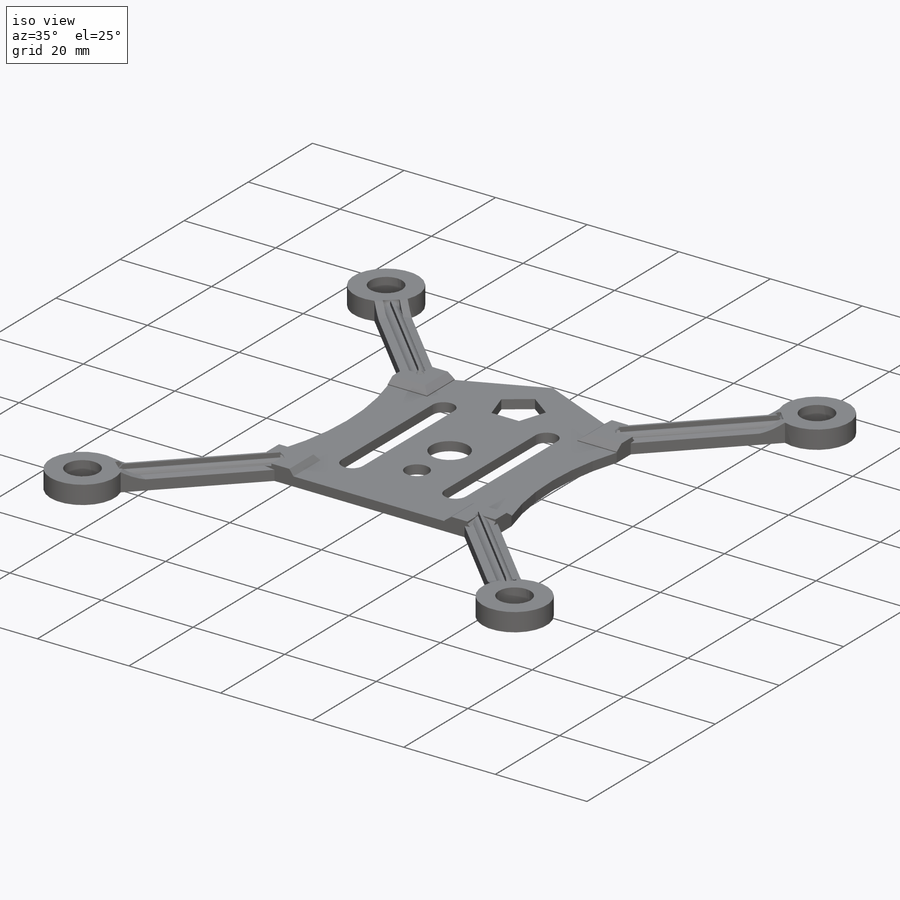
[diagram: iso view]
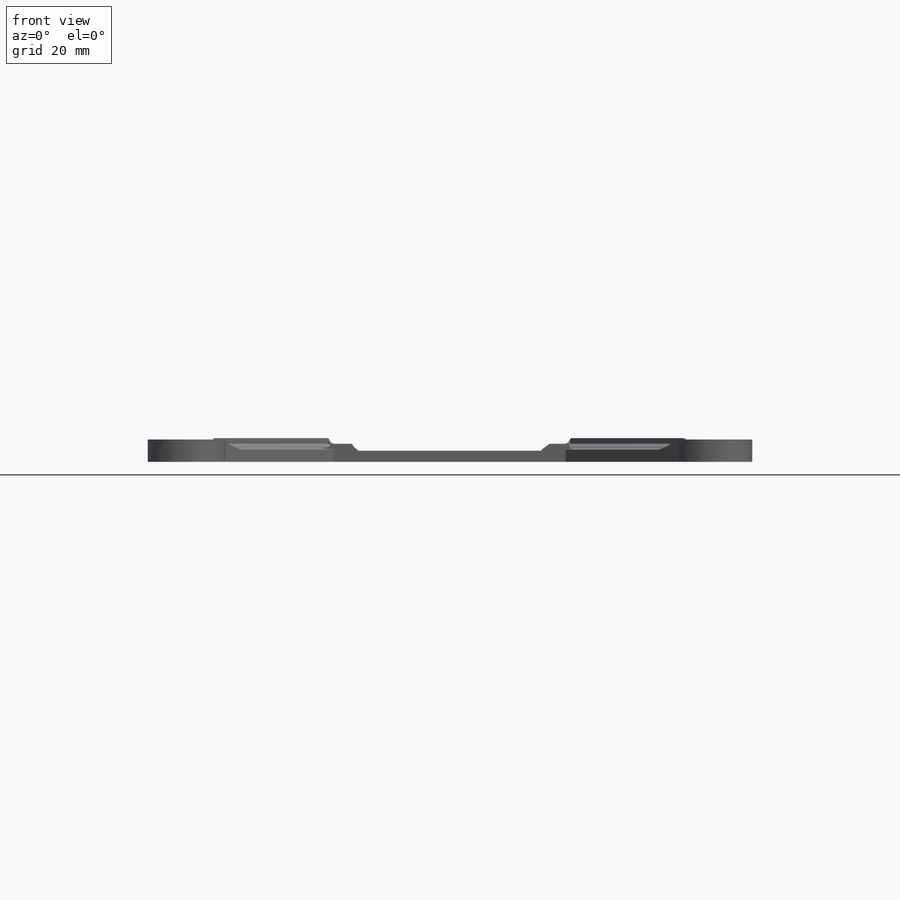
[diagram: front view]
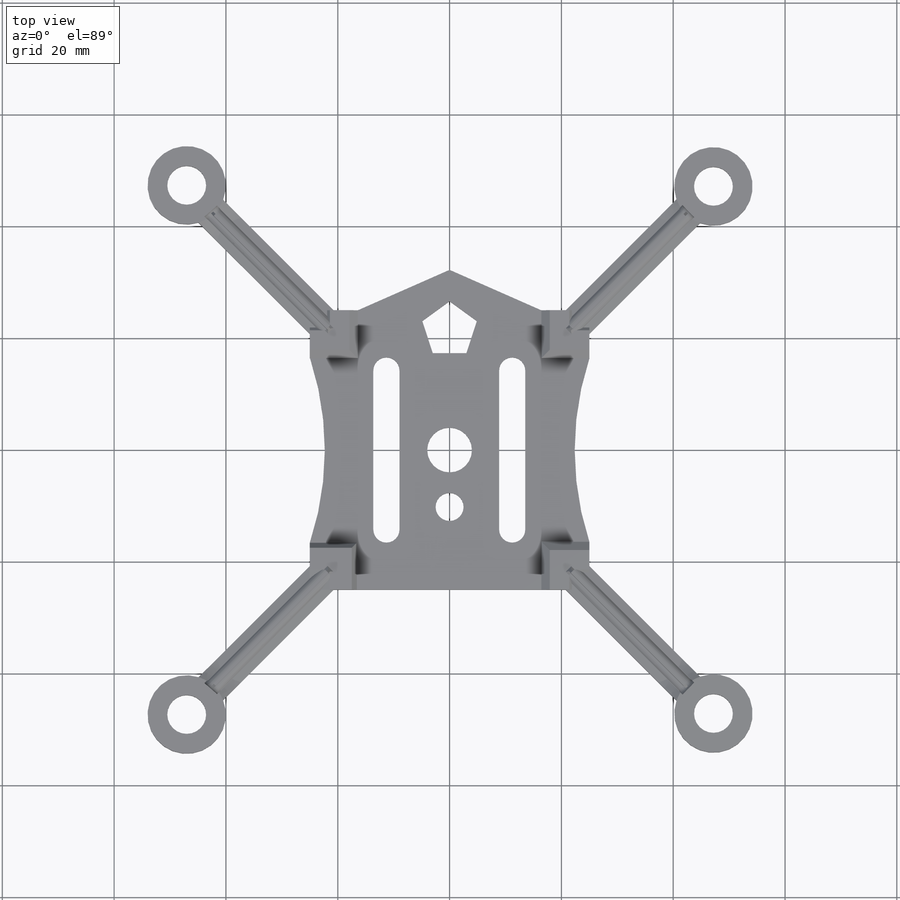
[diagram: top view]
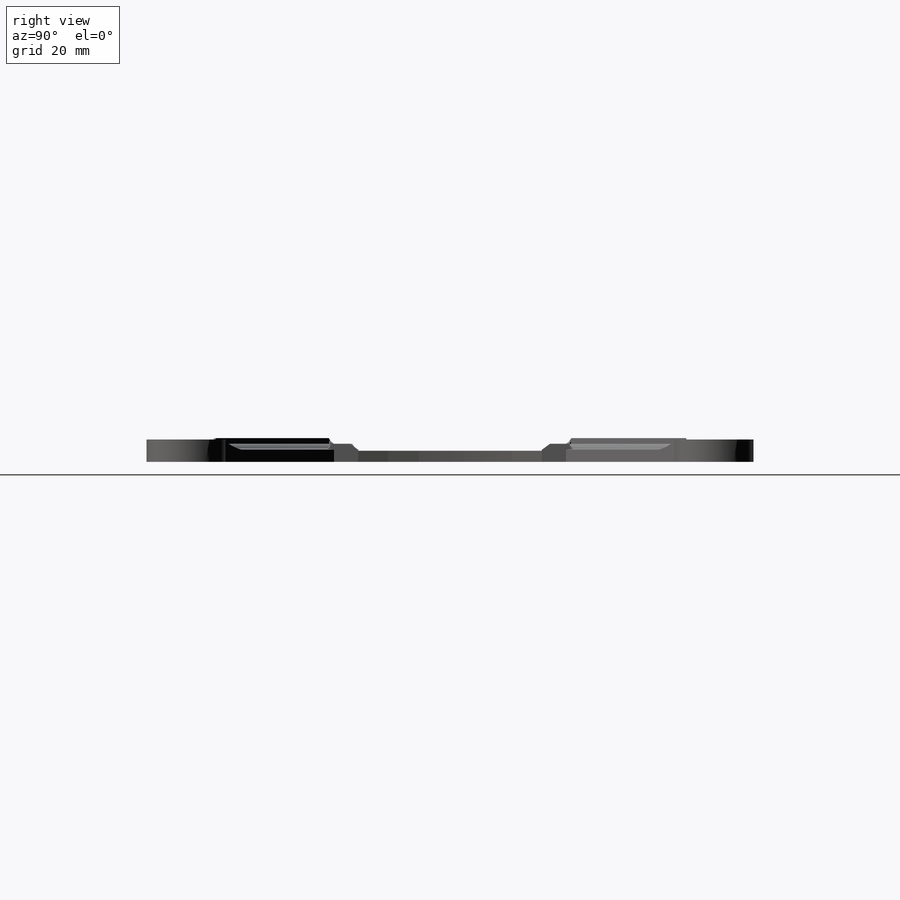
[diagram: right view]
SOLIDWORKS PART (.sldprt)
format: sldprt  version: not decoded by parser v0  size: 1,160,704 bytes
history: native  units: mm
features: sketch x21, extrude x16, chamfer x15, fillet x10, cut_extrude x4, plane x3, material x1 (+9 scaffold rows collapsed)
feature tree (79):
  scaffold x9  (default folders/planes/origin — collapsed)
  material  "Material <sin especificar>"
  plane  "Alzado"
  plane  "Planta"
  plane  "Vista lateral"
  sketch  "Croquis1"  dims[c1.D4=~5.014359mm c1.D6=14.0mm c1.D5=8.0mm c1.D1=~5.975283mm c1.D2=8.0mm c2.D1=6.95mm c2.D2=6.95mm c2.D4=6.95mm c2.D5=6.95mm c3.D1=100.0mm c3.D2=100.0mm c3.D3=50.0mm c3.D4=50.0mm c3.D6=3.0mm c4.D1=7.0mm c4.D4=3.0mm c4.D5=3.0mm c5.D4=3.0mm c5.D5=3.0mm c6.D4=3.0mm c6.D1=3.0mm]
  extrude  "Saliente-Extruir1"  Depth=2mm
  sketch  "Croquis2"  dims[D1=0.0mm D2=1.5mm]
  extrude  "Saliente-Extruir2"  Depth=1.25mm
  fillet  "Redondeo2"  Radius=1.25mm
  sketch  "Croquis3"
  sketch  "Croquis4"  dims[D1=0.0mm]
  sketch  "Croquis5"  dims[D1=0.0mm]
  sketch  "Croquis6"  dims[D1=0.0mm]
  extrude  "Saliente-Extruir3"  Depth=2.5mm
  extrude  "Saliente-Extruir4"  Depth=2.5mm
  extrude  "Saliente-Extruir5"  Depth=2.5mm
  sketch  "Croquis7"  dims[D1=0.0mm]
  extrude  "Saliente-Extruir6"  Depth=2.5mm
  fillet  "Redondeo3"  Radius=1.25mm
  fillet  "Redondeo4"  Radius=1.25mm
  sketch  "Croquis8"  dims[D1=0.0mm]
  extrude  "Saliente-Extruir7"  Depth=2mm
  fillet  "Redondeo5"  Radius=11.25mm
  fillet  "Redondeo6"  Radius=11.25mm
  fillet  "Redondeo7"  Radius=11.25mm
  fillet  "Redondeo8"  Radius=11.25mm
  fillet  "Redondeo9"  Radius=1mm
  fillet  "Redondeo10"  Radius=1mm
  fillet  "Redondeo11"  Radius=1mm
  chamfer  "Chaflán2"  Distance=1.5mm Angle=64deg
  chamfer  "Chaflán3"  Distance=1.5mm Angle=64deg
  chamfer  "Chaflán4"  Distance=1.5mm Angle=64deg
  sketch  "Croquis13"  dims[D1=0.0mm D2=2.5mm D3=2.5mm D4=2.5mm D5=2.5mm]
  extrude  "Saliente-Extruir10"  Depth=1.25mm
  chamfer  "Chaflán5"  Distance=1.5mm Angle=36deg
  chamfer  "Chaflán6"  Distance=0.5mm Angle=77deg
  chamfer  "Chaflán7"  Distance=0.5mm Angle=50deg
  chamfer  "Chaflán8"  Distance=0.5mm Angle=50deg
  chamfer  "Chaflán9"  Distance=0.5mm Angle=50deg
  sketch  "Croquis14"
  extrude  "Saliente-Extruir11"  Depth=1.25mm
  sketch  "Croquis15"  dims[D1=0.0mm]
  extrude  "Saliente-Extruir12"  Depth=0.75mm
  sketch  "Croquis16"
  cut_extrude  "Cortar-Extruir4"  [1 undecoded]
  sketch  "Croquis17"
  extrude  "Saliente-Extruir13"  Depth=1mm
  chamfer  "Chaflán10"  Distance=0.8mm Angle=51deg
  chamfer  "Chaflán13"  Distance=0.8mm Angle=51deg
  chamfer  "Chaflán14"  Distance=0.8mm Angle=51deg
  sketch  "Croquis18"  dims[D1=0.0mm]
  extrude  "Saliente-Extruir14"  Depth=1mm
  sketch  "Croquis19"  dims[D1=0.0mm]
  extrude  "Saliente-Extruir15"  Depth=1mm
  sketch  "Croquis20"  dims[D1=0.0mm]
  extrude  "Saliente-Extruir16"  Depth=1mm
  sketch  "Croquis21"  dims[D1=0.0mm]
  extrude  "Saliente-Extruir17"  Depth=1mm
  chamfer  "Chaflán15"  Distance=0.8mm Angle=51deg
  sketch  "Croquis22"
  extrude  "Saliente-Extruir18"  Depth=3mm
  chamfer  "Chaflán16"  Distance=0.5mm Angle=40deg
  chamfer  "Chaflán17"  Distance=0.5mm Angle=40deg
  chamfer  "Chaflán18"  Distance=0.5mm Angle=40deg
  sketch  "Croquis24"  dims[D1=0.0mm D2=2.0]
  cut_extrude  "Cortar-Extruir5"  [1 undecoded]
  sketch  "Croquis25"  dims[D2=~2.101284mm D1=0.0mm]
  cut_extrude  "Cortar-Extruir6"  Depth=3mm
  sketch  "Croquis26"
  cut_extrude  "Cortar-Extruir7"  [1 undecoded]
decode coverage: 57 of 66 modeling features carry decoded parameters
note: ~ marks probable driven/reference dimensions
note: 3 parameter values undecoded
summary: no parameter record found for 3 features
note: suppression state not decoded; provenance and decode notes live in map.json
